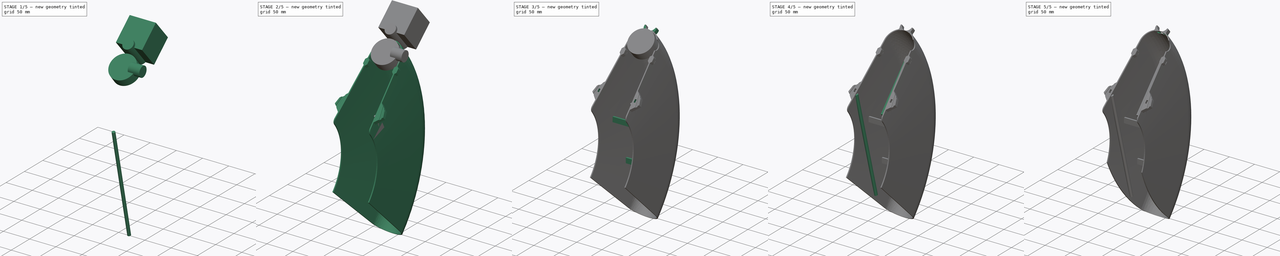
[diagram: build sequence overview — one tinted view per stage of 5, left to right]
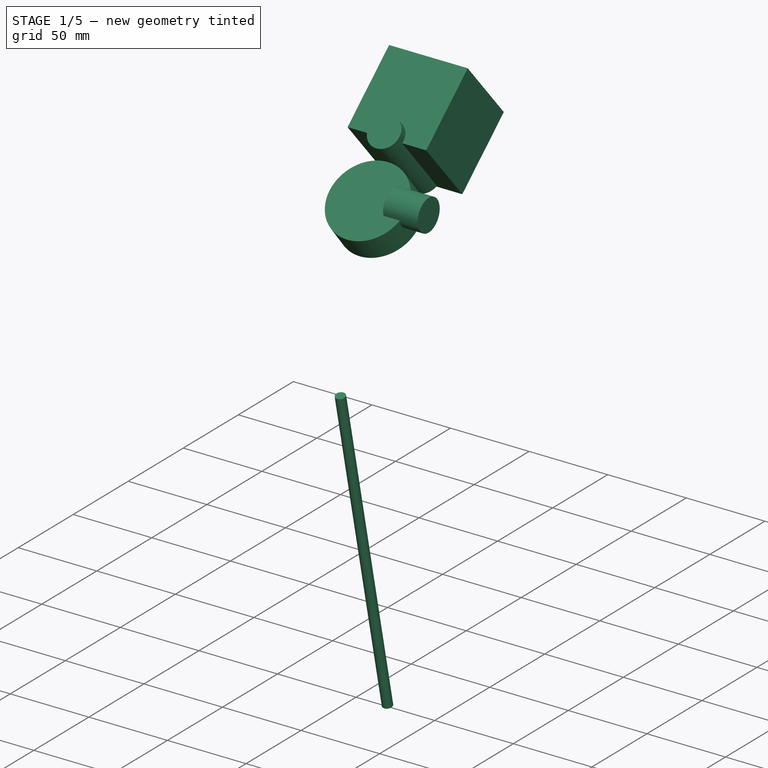
[diagram: stage 1 of 5 — iso view after this stage's code; geometry added in this stage tinted green]
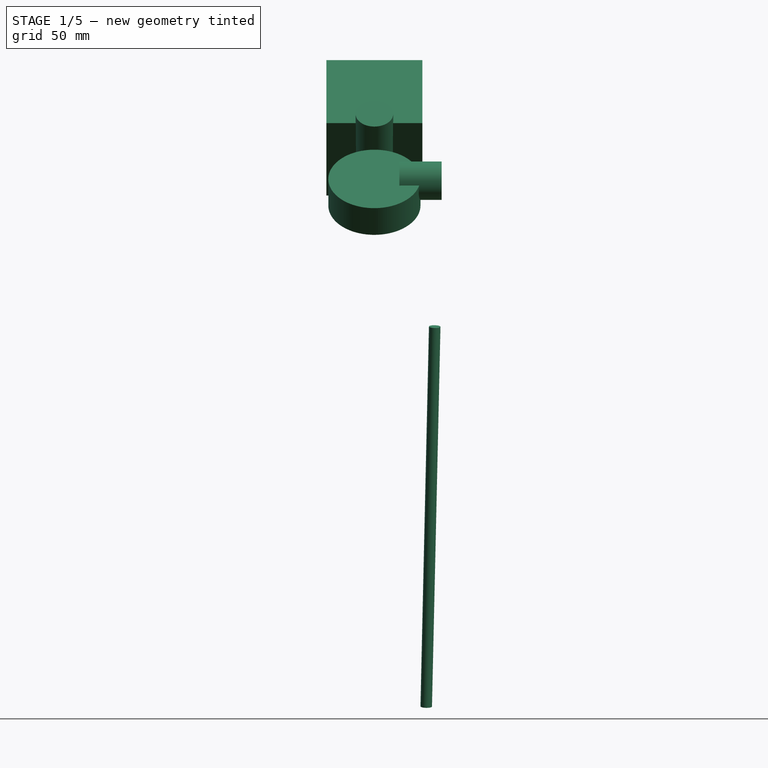
[diagram: stage 1 of 5 — front view after this stage's code; geometry added in this stage tinted green]
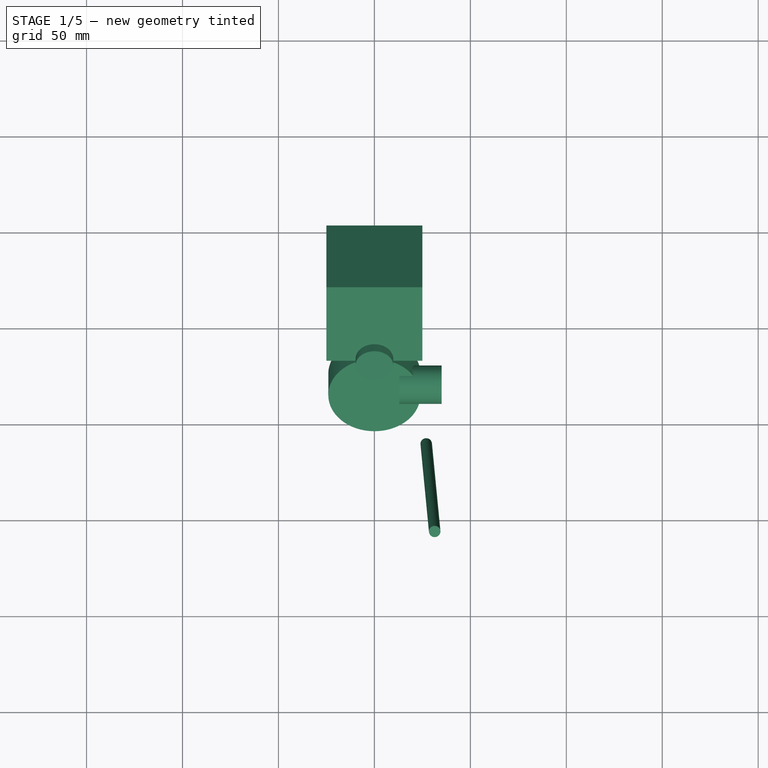
[diagram: stage 1 of 5 — top view after this stage's code; geometry added in this stage tinted green]
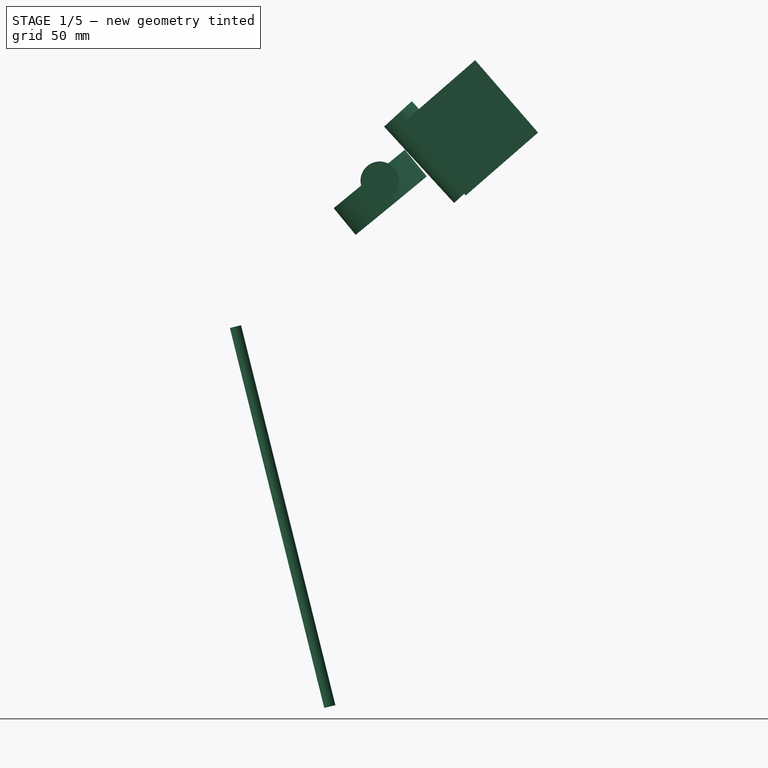
[diagram: stage 1 of 5 — right view after this stage's code; geometry added in this stage tinted green]
FCSTD DOCUMENT  (FreeCAD 0.19R)
Label: Mudguard9.1
License: All rights reserved
LicenseURL: http://en.wikipedia.org/wiki/All_rights_reserved
objects: Sketcher::SketchObject×6, Part::Cylinder×6, Part::Box×5, PartDesign::Pocket×4, Part::MultiFuse×4, Part::Fillet×4, Part::Cut×3, Part::Mirroring×2, PartDesign::Revolution×1, PartDesign::ShapeBinder×1, PartDesign::Fillet×1, PartDesign::Pad×1, PartDesign::Chamfer×1, PartDesign::Body×1, Part::MultiCommon×1
note: 49 computed .brp shape members not serialized (recipe doc carries the construction recipe); baked Part::Feature solids carry a one-line shape summary decoded from their .brp

FEATURE [Sketcher::SketchObject] Sketch002
  FullyConstrained = false
  MapMode = 5
  Placement = pos=(0,-9.6e-15,1.05e-14) rot=(1,0,0;0.741765rad)
  Support = -> [Fillet]
  sketch-geometry (21):
    g0: LineSegment StartX=-29.785 StartY=256.106 StartZ=0 EndX=29.785 EndY=256.106 EndZ=0
    g1: LineSegment StartX=-43.3942 StartY=132.698 StartZ=0 EndX=-46.5 EndY=121.106 EndZ=0
    g2: LineSegment StartX=-46.5 StartY=121.106 StartZ=0 EndX=-33.2488 EndY=107.855 EndZ=0
    g3: LineSegment StartX=-33.2488 StartY=107.855 StartZ=0 EndX=-31 EndY=145.092 EndZ=0
    g4: LineSegment StartX=-31 StartY=145.092 StartZ=0 EndX=-43.3942 EndY=132.698 EndZ=0
    g5: LineSegment StartX=43.3942 StartY=132.698 StartZ=0 EndX=46.5 EndY=121.106 EndZ=0
    g6: LineSegment StartX=46.5 StartY=121.106 StartZ=0 EndX=33.2488 EndY=107.855 EndZ=0
    g7: LineSegment StartX=33.2488 StartY=107.855 StartZ=0 EndX=31 EndY=145.092 EndZ=0
    g8: LineSegment StartX=31 StartY=145.092 StartZ=0 EndX=43.3942 EndY=132.698 EndZ=0
    g9: LineSegment StartX=28 StartY=194.106 StartZ=0 EndX=32 EndY=198.106 EndZ=0
    g10: LineSegment StartX=32 StartY=198.106 StartZ=0 EndX=32 EndY=206.106 EndZ=0
    g11: LineSegment StartX=32 StartY=206.106 StartZ=0 EndX=28 EndY=210.106 EndZ=0
    g12: LineSegment StartX=28 StartY=210.106 StartZ=0 EndX=24 EndY=206.106 EndZ=0
    g13: LineSegment StartX=24 StartY=206.106 StartZ=0 EndX=24 EndY=198.106 EndZ=0
    g14: LineSegment StartX=24 StartY=198.106 StartZ=0 EndX=28 EndY=194.106 EndZ=0
    g15: LineSegment StartX=-28 StartY=194.106 StartZ=0 EndX=-24 EndY=198.106 EndZ=0
    g16: LineSegment StartX=-24 StartY=198.106 StartZ=0 EndX=-24 EndY=206.106 EndZ=0
    g17: LineSegment StartX=-24 StartY=206.106 StartZ=0 EndX=-28 EndY=210.106 EndZ=0
    g18: LineSegment StartX=-28 StartY=210.106 StartZ=0 EndX=-32 EndY=206.106 EndZ=0
    g19: LineSegment StartX=-32 StartY=206.106 StartZ=0 EndX=-32 EndY=198.106 EndZ=0
    g20: LineSegment StartX=-32 StartY=198.106 StartZ=0 EndX=-28 EndY=194.106 EndZ=0
  constraints (55):
    c: Coincident(g1,g2)
    c: Coincident(g2,g3)
    c: Coincident(g3,g4)
    c: Coincident(g4,g1)
    c: Coincident(g5,g6)
    c: Coincident(g6,g7)
    c: Coincident(g7,g8)
    c: Coincident(g8,g5)
    c: Symmetric(g7,g3,g-2)
    c: Symmetric(g6,g2,g-2)
    c: Equal(g5,g1)
    c: Symmetric(g5,g1,g-2)
    c: Equal(g2,g6)
    c: Distance(g5,g1) = 93
    c: Angle(g6) = -2.35619
    c: Coincident(g9,g10)
    c: Vertical(g10)
    c: Coincident(g10,g11)
    c: Coincident(g11,g12)
    c: Coincident(g12,g13)
    c: Vertical(g13)
    c: Coincident(g13,g14)
    c: Coincident(g14,g9)
    c: Coincident(g15,g16)
    c: Coincident(g16,g17)
    c: Coincident(g17,g18)
    c: Coincident(g18,g19)
    c: Coincident(g19,g20)
    c: Coincident(g20,g15)
    c: Distance(g5) = 12
    c: Angle(g5) = -1.309
    c: Symmetric(g0,g0,g-2)
    c: Distance(g0) = 59.57
    c: Angle(g8) = -0.785398
    c: Distance(g7,g3) = 62
    c: Distance(g9,g13) = 8
    c: Symmetric(g13,g15,g-2)
    c: Symmetric(g12,g16,g-2)
    c: Symmetric(g9,g19,g-2)
    c: Symmetric(g10,g18,g-2)
    c: Equal(g13,g19)
    c: Distance(g10) = 8
    c: Angle(g12,g11) = 1.5708
    c: Equal(g18,g12)
    c: Equal(g20,g14)
    c: Equal(g15,g9)
    c: Equal(g17,g11)
    c: Angle(g15,g20) = 1.5708
    c: Equal(g20,g15)
    c: Distance(g10,g0) = 50
    c: DistanceY(g12,g10) = 0
    c: Distance(g9,g19) = 64
    c: Distance(g5,g0) = 135
    c: Distance(g2) = 18.74
    c: Equal(g17,g18)
FEATURE [Part::Cylinder] Cylinder
  Angle = 360
  AttacherType = Attacher::AttachEngine3D
  Height = 22
  Placement = pos=(35,166,156) rot=(0,-1,0;1.5708rad)
  Radius = 10
FEATURE [Part::Box] Box  label="Cube"
  AttacherType = Attacher::AttachEngine3D
  Height = 50
  Length = 50
  Placement = pos=(-25,178,186) rot=(-1,0,0;0.855211rad)
  Width = 50
FEATURE [Part::Cylinder] Cylinder006
  Angle = 360
  AttacherType = Attacher::AttachEngine3D
  Height = 54
  Placement = pos=(0,212,151) rot=(1,0,0;0.741765rad)
  Radius = 9.8
FEATURE [Part::MultiFuse] Fusion001
  Shapes = -> [Cylinder,Box,Cylinder006]
FEATURE [Part::Cylinder] Cylinder008
  Angle = 360
  AttacherType = Attacher::AttachEngine3D
  Height = 204
  Placement = pos=(-27,140,-118) rot=(0.995974,-0.089638,0;0.244346rad)
  Radius = 3
FEATURE [Part::Mirroring] Part__Mirroring  label="Cylinder008 (Mirror #1)"
  Base = (0,0,0)
  Normal = (1,0,0)
  Source = -> Cylinder008
FEATURE [Part::Cylinder] Cylinder009
  Angle = 360
  AttacherType = Attacher::AttachEngine3D
  Height = 18
  Placement = pos=(0,172,143) rot=(0.358791,0.313942,-0.879039;1.5708rad)
  Radius = 24
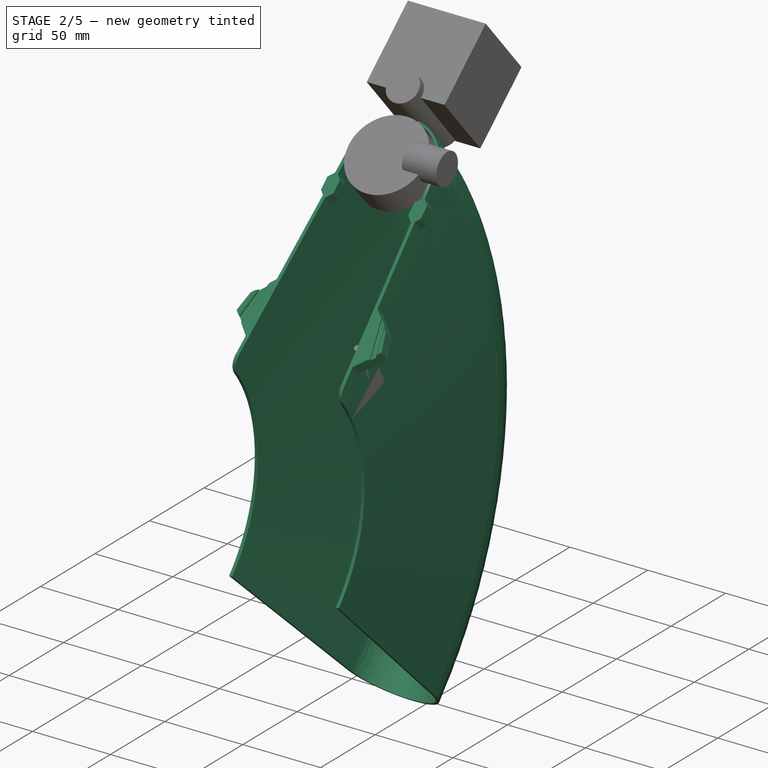
[diagram: stage 2 of 5 — iso view after this stage's code; geometry added in this stage tinted green]
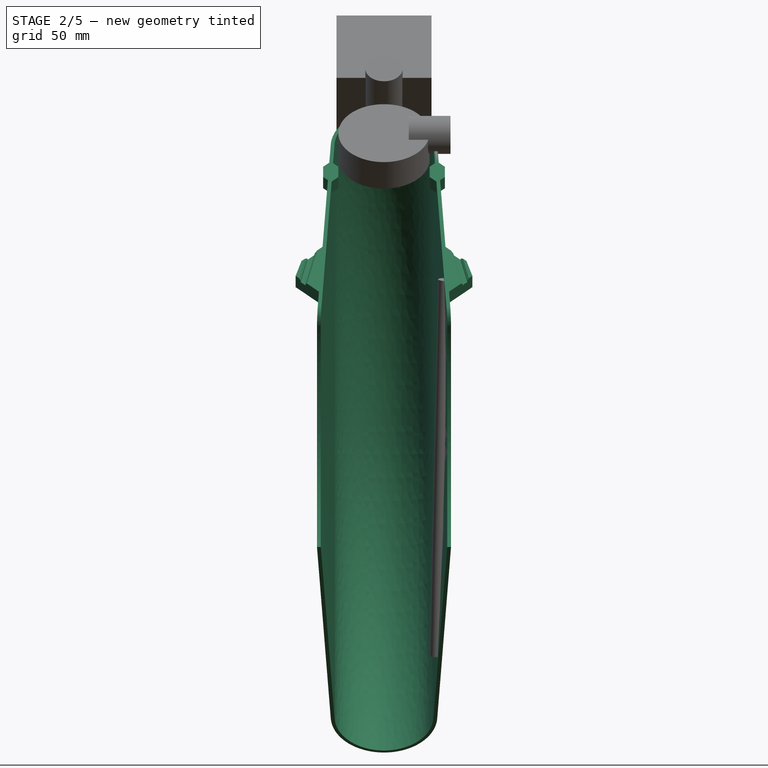
[diagram: stage 2 of 5 — front view after this stage's code; geometry added in this stage tinted green]
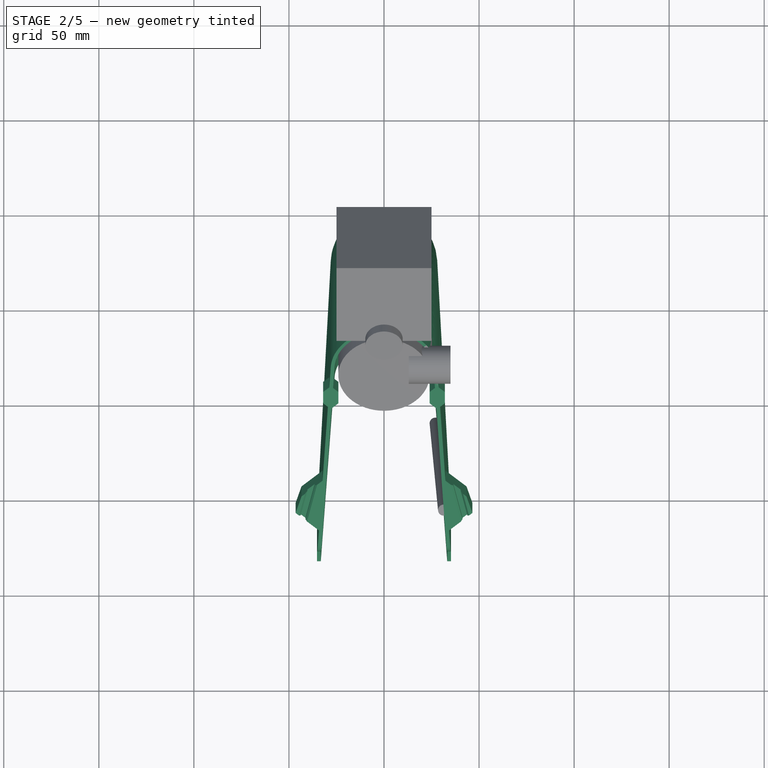
[diagram: stage 2 of 5 — top view after this stage's code; geometry added in this stage tinted green]
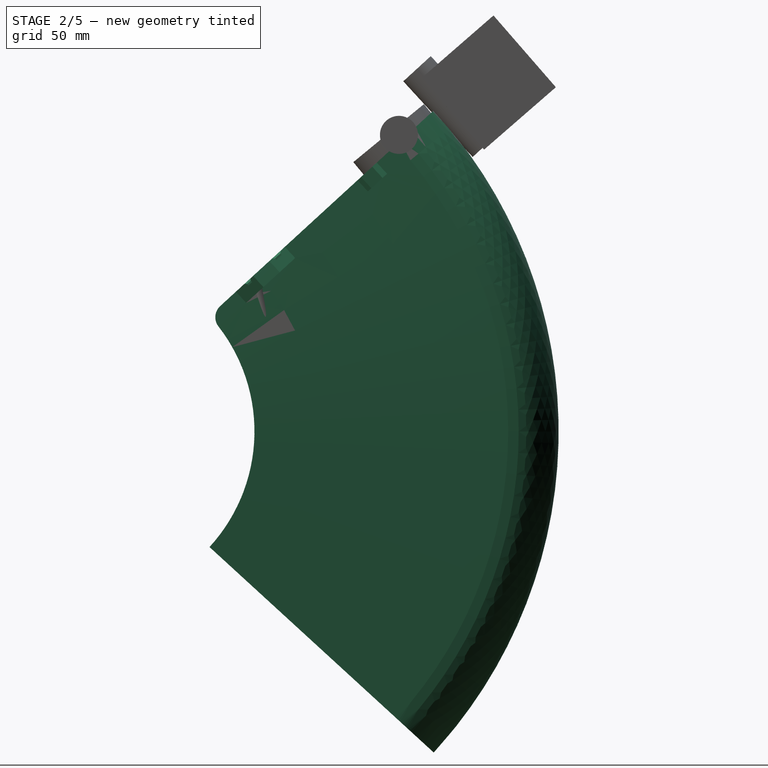
[diagram: stage 2 of 5 — right view after this stage's code; geometry added in this stage tinted green]
FEATURE [Sketcher::SketchObject] Sketch
  FullyConstrained = false
  MapMode = 5
  Support = -> [XY_Plane]
  sketch-geometry (9):
    g0: LineSegment StartX=-38.02 StartY=250 StartZ=0 EndX=36.46 EndY=250 EndZ=0
    g1: ArcOfCircle CenterX=4e-16 CenterY=221.959 CenterZ=0 NormalX=0 NormalY=0 NormalZ=1 AngleXU=0 Radius=28.0413 StartAngle=0.0542621 EndAngle=3.08733
    g2: LineSegment StartX=-35.25 StartY=90 StartZ=0 EndX=-28 EndY=223.48 EndZ=0
    g3: LineSegment StartX=-33.25 StartY=90 StartZ=0 EndX=-26.0014 EndY=223.4 EndZ=0
    g4: LineSegment StartX=26.0014 StartY=223.4 StartZ=0 EndX=33.25 EndY=90 EndZ=0
    g5: LineSegment StartX=-35.25 StartY=90 StartZ=0 EndX=-33.25 EndY=90 EndZ=0
    g6: LineSegment StartX=33.25 StartY=90 StartZ=0 EndX=35.25 EndY=90 EndZ=0
    g7: LineSegment StartX=35.25 StartY=90 StartZ=0 EndX=28 EndY=223.48 EndZ=0
    g8: ArcOfCircle CenterX=3e-16 CenterY=222.39 CenterZ=0 NormalX=0 NormalY=0 NormalZ=1 AngleXU=0 Radius=26.021 StartAngle=0.0388177 EndAngle=3.10277
  constraints (24):
    c: Horizontal(g0)
    c: DistanceY(g0) = 250
    c: Tangent(g1,g0)
    c: Symmetric(g1,g1,g-2)
    c: Distance(g0) = 74.48
    c: DistanceX(g0) = 36.46
    c: Tangent(g2,g1) = 1.5708
    c: Coincident(g5,g2)
    c: Coincident(g5,g3)
    c: Distance(g5) = 2
    c: Coincident(g4,g6)
    c: Coincident(g6,g7)
    c: Coincident(g7,g1)
    c: Symmetric(g4,g3,g-2)
    c: Symmetric(g6,g2,g-2)
    c: Horizontal(g6)
    c: Distance(g4,g3) = 66.5
    c: DistanceY(g6) = 90
    c: Distance(g1,g1) = 56
    c: Coincident(g8,g4)
    c: Coincident(g8,g3)
    c: Symmetric(g3,g4,g-2)
    c: Distance(g4,g7) = 2
    c: DistanceY(g4) = 223.4
FEATURE [PartDesign::Revolution] Revolution
  Angle = 85
  Axis = (1,0,0)
  Base = (0,0,0)
  Midplane = true
  Profile = -> Sketch
  ReferenceAxis = -> Sketch [H_Axis]
FEATURE [PartDesign::ShapeBinder] CopyFusion
  Placement = pos=(0,0,0) rot=(1,0,0;0.785398rad)
  TraceSupport = false
FEATURE [PartDesign::Fillet] Fillet
  Base = -> Revolution [Edge7,Edge19]
  BaseFeature = -> Revolution
  Radius = 8
  SupportTransform = false
FEATURE [PartDesign::Pad] Pad
  BaseFeature = -> Fillet
  Direction = (1,1,1)
  Length = 8
  Length2 = 100
  Profile = -> Sketch002
  Reversed = true
  Type = 0
FEATURE [Sketcher::SketchObject] Sketch003
  FullyConstrained = true
  MapMode = 5
  Placement = pos=(0,4.8e-15,-5.2e-15) rot=(1,0,0;0.741765rad)
  Support = -> [Pad]
  sketch-geometry (8):
    g0: LineSegment StartX=35 StartY=146.87 StartZ=0 EndX=45 EndY=97.88 EndZ=0
    g1: LineSegment StartX=45 StartY=97.88 StartZ=0 EndX=47.9394 EndY=98.48 EndZ=0
    g2: LineSegment StartX=47.9394 StartY=98.48 StartZ=0 EndX=37.9394 EndY=147.47 EndZ=0
    g3: LineSegment StartX=37.9394 StartY=147.47 StartZ=0 EndX=35 EndY=146.87 EndZ=0
    g4: LineSegment StartX=-47.9394 StartY=98.48 StartZ=0 EndX=-45 EndY=97.88 EndZ=0
    g5: LineSegment StartX=-45 StartY=97.88 StartZ=0 EndX=-35 EndY=146.87 EndZ=0
    g6: LineSegment StartX=-47.9394 StartY=98.48 StartZ=0 EndX=-37.9394 EndY=147.47 EndZ=0
    g7: LineSegment StartX=-37.9394 StartY=147.47 StartZ=0 EndX=-35 EndY=146.87 EndZ=0
  constraints (22):
    c: Coincident(g0,g1)
    c: Coincident(g1,g2)
    c: Coincident(g2,g3)
    c: Coincident(g3,g0)
    c: Coincident(g4,g5)
    c: Equal(g1,g3)
    c: Equal(g0,g2)
    c: Symmetric(g4,g0,g-2)
    c: Perpendicular(g0,g1)
    c: Distance(g3) = 3
    c: Distance(g0,g4) = 90
    c: Coincident(g4,g6)
    c: Coincident(g6,g7)
    c: Coincident(g7,g5)
    c: Equal(g7,g3)
    c: Equal(g6,g5)
    c: Perpendicular(g6,g7)
    c: Symmetric(g0,g5,g-2)
    c: Distance(g2) = 50
    c: Equal(g4,g7)
    c: DistanceY(g0) = 97.88
    c: Distance(g5,g0) = 70
FEATURE [PartDesign::Pocket] Pocket
  BaseFeature = -> Pad
  Length = 2
  Length2 = 100
  Profile = -> Sketch003
  Type = 0
FEATURE [PartDesign::Chamfer] Chamfer
  Angle = 45
  Base = -> Pocket [Edge139,Edge101,Edge142,Edge145]
  BaseFeature = -> Pocket
  ChamferType = 0
  FlipDirection = false
  Size = 1
  Size2 = 1
  SupportTransform = false
FEATURE [Sketcher::SketchObject] Sketch005
  FullyConstrained = false
  MapMode = 5
  Placement = pos=(1.4e-15,5.40472,-5.89822) rot=(1,0,0;3.88336rad)
  Support = -> [Chamfer]
  sketch-geometry (8):
    g0: LineSegment StartX=-37.5477 StartY=128.579 StartZ=0 EndX=-34.5477 EndY=128.579 EndZ=0
    g1: LineSegment StartX=-34.5477 StartY=128.579 StartZ=0 EndX=-34.5477 EndY=121.579 EndZ=0
    g2: LineSegment StartX=-34.5477 StartY=121.579 StartZ=0 EndX=-37.5477 EndY=121.579 EndZ=0
    g3: LineSegment StartX=-37.5477 StartY=121.579 StartZ=0 EndX=-37.5477 EndY=128.579 EndZ=0
    g4: LineSegment StartX=34.5477 StartY=128.579 StartZ=0 EndX=37.5477 EndY=128.579 EndZ=0
    g5: LineSegment StartX=37.5477 StartY=128.579 StartZ=0 EndX=37.5477 EndY=121.579 EndZ=0
    g6: LineSegment StartX=37.5477 StartY=121.579 StartZ=0 EndX=34.5477 EndY=121.579 EndZ=0
    g7: LineSegment StartX=34.5477 StartY=121.579 StartZ=0 EndX=34.5477 EndY=128.579 EndZ=0
  constraints (21):
    c: Coincident(g0,g1)
    c: Coincident(g1,g2)
    c: Coincident(g2,g3)
    c: Coincident(g3,g0)
    c: Horizontal(g0)
    c: Horizontal(g2)
    c: Vertical(g1)
    c: Vertical(g3)
    c: Coincident(g4,g5)
    c: Coincident(g5,g6)
    c: Coincident(g6,g7)
    c: Coincident(g7,g4)
    c: Horizontal(g4)
    c: Horizontal(g6)
    c: Vertical(g5)
    c: Vertical(g7)
    c: Distance(g4) = 3
    c: Distance(g5) = 7
    c: Equal(g4,g0)
    c: Symmetric(g0,g4,g-2)
    c: Equal(g1,g5)
FEATURE [PartDesign::Pocket] Pocket001
  BaseFeature = -> Chamfer
  Length = 5
  Length2 = 100
  Profile = -> Sketch005
  Type = 1
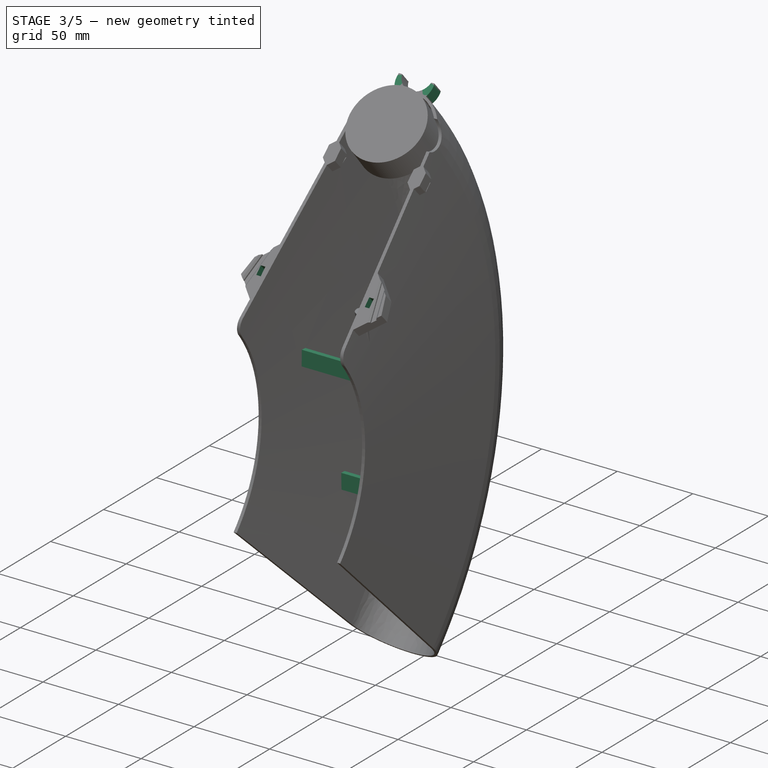
[diagram: stage 3 of 5 — iso view after this stage's code; geometry added in this stage tinted green]
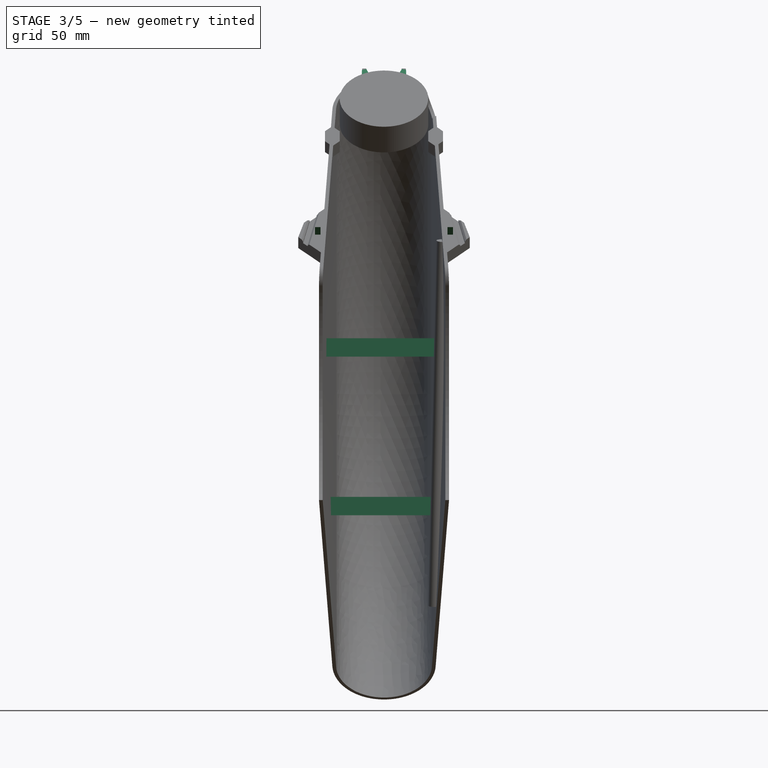
[diagram: stage 3 of 5 — front view after this stage's code; geometry added in this stage tinted green]
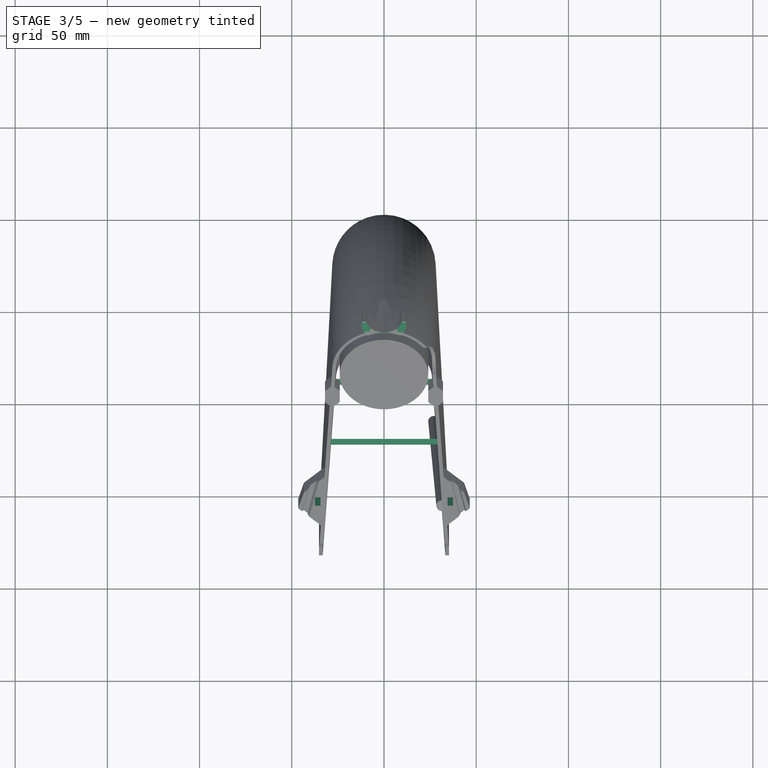
[diagram: stage 3 of 5 — top view after this stage's code; geometry added in this stage tinted green]
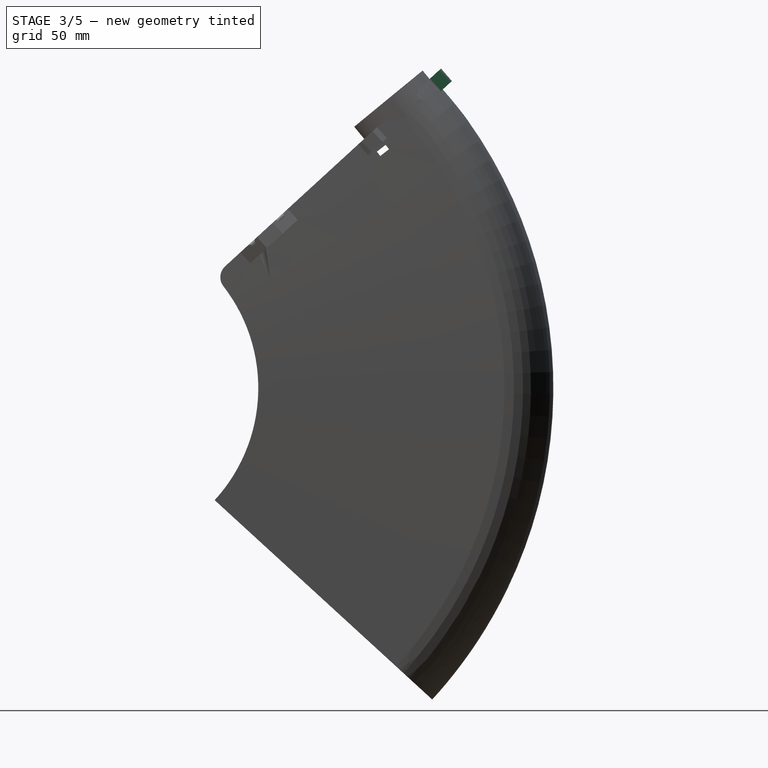
[diagram: stage 3 of 5 — right view after this stage's code; geometry added in this stage tinted green]
FEATURE [Sketcher::SketchObject] Sketch006
  FullyConstrained = false
  MapMode = 5
  Placement = pos=(32,0,0) rot=(0.57735,0.57735,0.57735;2.0944rad)
  sketch-geometry (4):
    g0: LineSegment StartX=154.311 StartY=128.181 StartZ=0 EndX=156.15 EndY=125.81 EndZ=0
    g1: LineSegment StartX=156.15 StartY=125.81 StartZ=0 EndX=160.891 EndY=129.486 EndZ=0
    g2: LineSegment StartX=160.891 StartY=129.486 StartZ=0 EndX=159.053 EndY=131.857 EndZ=0
    g3: LineSegment StartX=159.053 StartY=131.857 StartZ=0 EndX=154.311 EndY=128.181 EndZ=0
  constraints (9):
    c: Coincident(g0,g1)
    c: Coincident(g1,g2)
    c: Coincident(g2,g3)
    c: Coincident(g3,g0)
    c: Equal(g1,g3)
    c: Perpendicular(g1,g0)
    c: Equal(g2,g0)
    c: Distance(g2) = 3
    c: Distance(g3) = 6
FEATURE [PartDesign::Pocket] Pocket002
  BaseFeature = -> Pocket001
  Length = 5
  Length2 = 100
  Profile = -> Sketch006
  Type = 1
FEATURE [Part::Cylinder] Cylinder003
  Angle = 360
  AttacherType = Attacher::AttachEngine3D
  Height = 9
  Placement = pos=(0,193.4,165) rot=(1,0,0;0.741765rad)
  Radius = 12
FEATURE [Part::Box] Box003  label="Cube003"
  AttacherType = Attacher::AttachEngine3D
  Height = 10
  Length = 64
  Placement = pos=(-32,125,17) rot=(0,0,1;0rad)
  Width = 3
FEATURE [Part::Box] Box004  label="Cube004"
  AttacherType = Attacher::AttachEngine3D
  Height = 10
  Length = 60
  Placement = pos=(-30,159,-69) rot=(0,0,1;0rad)
  Width = 3
FEATURE [Sketcher::SketchObject] Sketch007
  FullyConstrained = false
  MapMode = 5
  Placement = pos=(1.4e-15,5.40472,-5.89822) rot=(1,0,0;3.88336rad)
  Support = -> [Pocket002]
  sketch-geometry (8):
    g0: LineSegment StartX=-37.3985 StartY=-123.117 StartZ=0 EndX=-34.3985 EndY=-123.117 EndZ=0
    g1: LineSegment StartX=-34.3985 StartY=-123.117 StartZ=0 EndX=-34.3985 EndY=-129.117 EndZ=0
    g2: LineSegment StartX=-34.3985 StartY=-129.117 StartZ=0 EndX=-37.3985 EndY=-129.117 EndZ=0
    g3: LineSegment StartX=-37.3985 StartY=-129.117 StartZ=0 EndX=-37.3985 EndY=-123.117 EndZ=0
    g4: LineSegment StartX=34.3985 StartY=-123.117 StartZ=0 EndX=37.3985 EndY=-123.117 EndZ=0
    g5: LineSegment StartX=37.3985 StartY=-123.117 StartZ=0 EndX=37.3985 EndY=-129.117 EndZ=0
    g6: LineSegment StartX=37.3985 StartY=-129.117 StartZ=0 EndX=34.3985 EndY=-129.117 EndZ=0
    g7: LineSegment StartX=34.3985 StartY=-129.117 StartZ=0 EndX=34.3985 EndY=-123.117 EndZ=0
  constraints (21):
    c: Coincident(g0,g1)
    c: Coincident(g1,g2)
    c: Coincident(g2,g3)
    c: Coincident(g3,g0)
    c: Horizontal(g0)
    c: Horizontal(g2)
    c: Vertical(g1)
    c: Vertical(g3)
    c: Coincident(g4,g5)
    c: Coincident(g5,g6)
    c: Coincident(g6,g7)
    c: Coincident(g7,g4)
    c: Horizontal(g4)
    c: Horizontal(g6)
    c: Vertical(g5)
    c: Vertical(g7)
    c: Distance(g0) = 3
    c: Distance(g4) = 3
    c: Distance(g5) = 6
    c: Distance(g1) = 6
    c: Symmetric(g1,g6,g-2)
FEATURE [PartDesign::Pocket] Pocket003
  BaseFeature = -> Pocket002
  Length = 5
  Length2 = 100
  Profile = -> Sketch007
  Type = 1
FEATURE [Part::MultiFuse] Fusion
  Shapes = -> [Cylinder003,Pocket003,Box004,Box003]
FEATURE [Part::Cut] Cut
  Base = -> Fusion
  Tool = -> Fusion001
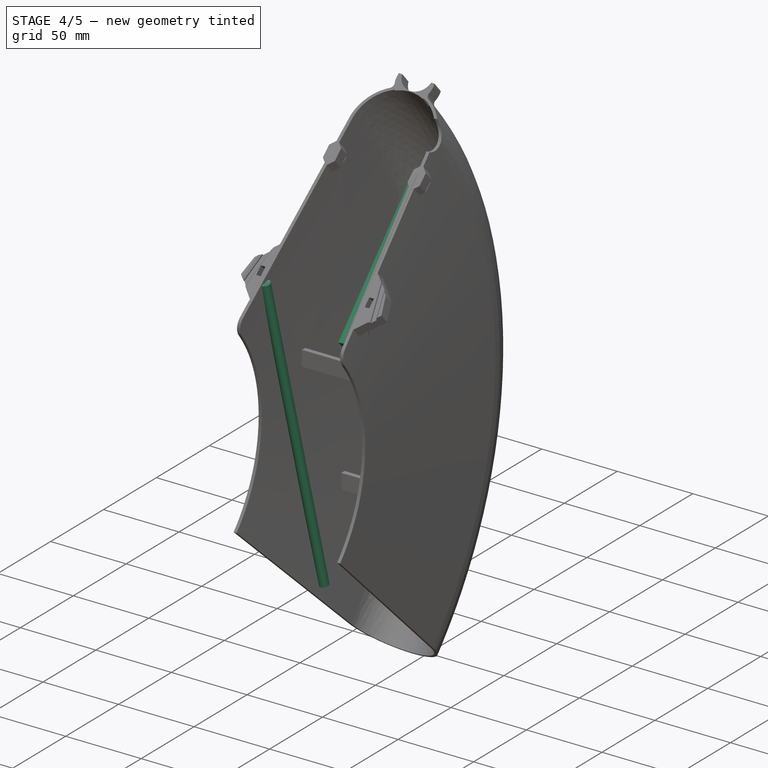
[diagram: stage 4 of 5 — iso view after this stage's code; geometry added in this stage tinted green]
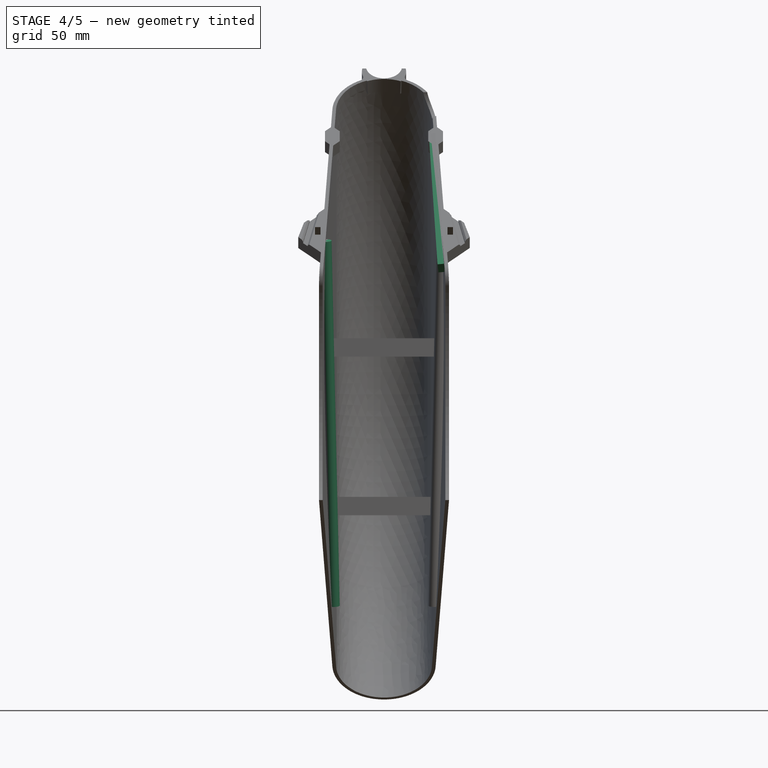
[diagram: stage 4 of 5 — front view after this stage's code; geometry added in this stage tinted green]
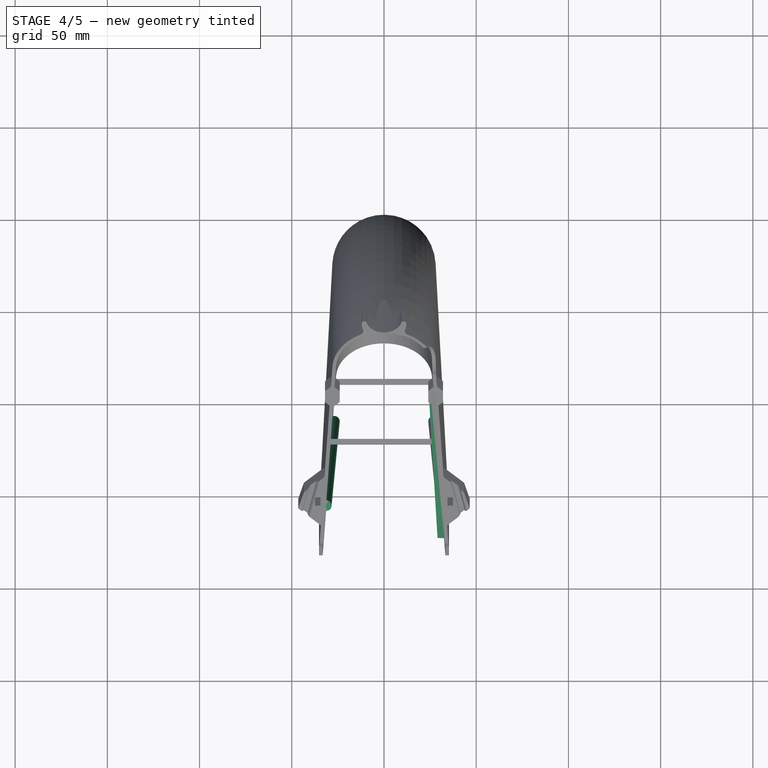
[diagram: stage 4 of 5 — top view after this stage's code; geometry added in this stage tinted green]
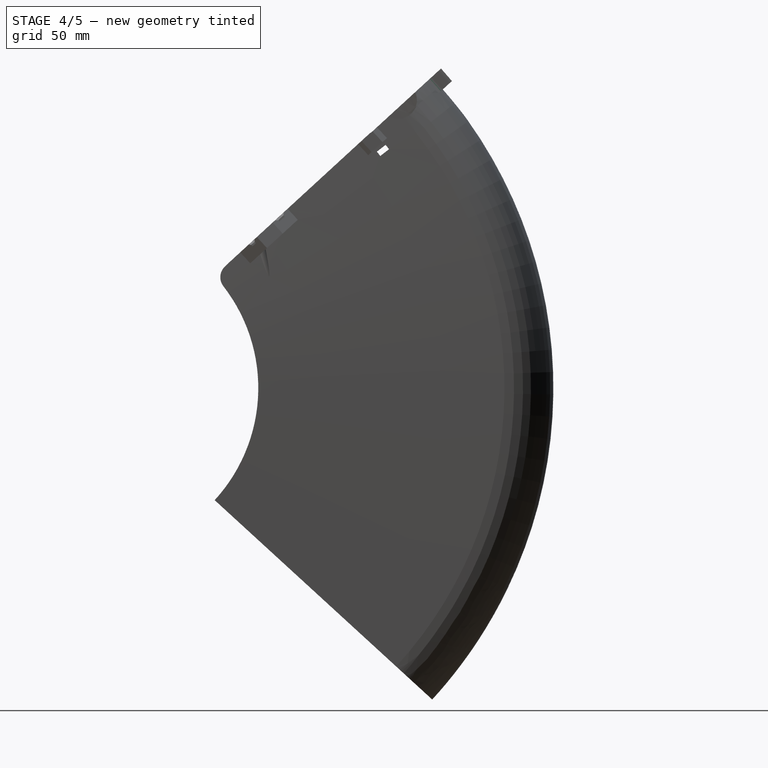
[diagram: stage 4 of 5 — right view after this stage's code; geometry added in this stage tinted green]
FEATURE [Part::MultiFuse] Fusion002
  Shapes = -> [Part__Mirroring,Cylinder008,Cut]
FEATURE [Part::Box] Box006  label="Cube006"
  AttacherType = Attacher::AttachEngine3D
  Height = 6
  Length = 3.5
  Placement = pos=(-33,77.5,63) rot=(0.991739,0.127146,-0.016953;0.750492rad)
  Width = 105
FEATURE [Part::Mirroring] Part__Mirroring001  label="Cube006 (Mirror #2)"
  Base = (0,0,0)
  Normal = (1,0,0)
  Source = -> Box006
FEATURE [Part::Cut] Cut001
  Base = -> Fusion002
  Tool = -> Cylinder009
FEATURE [Part::MultiFuse] Fusion003
  Shapes = -> [Cut001,Part__Mirroring001]
FEATURE [Part::Fillet] Fillet001
  Base = -> Fusion003
  Edges = 2 edges r=3: [Edge143,Edge147]
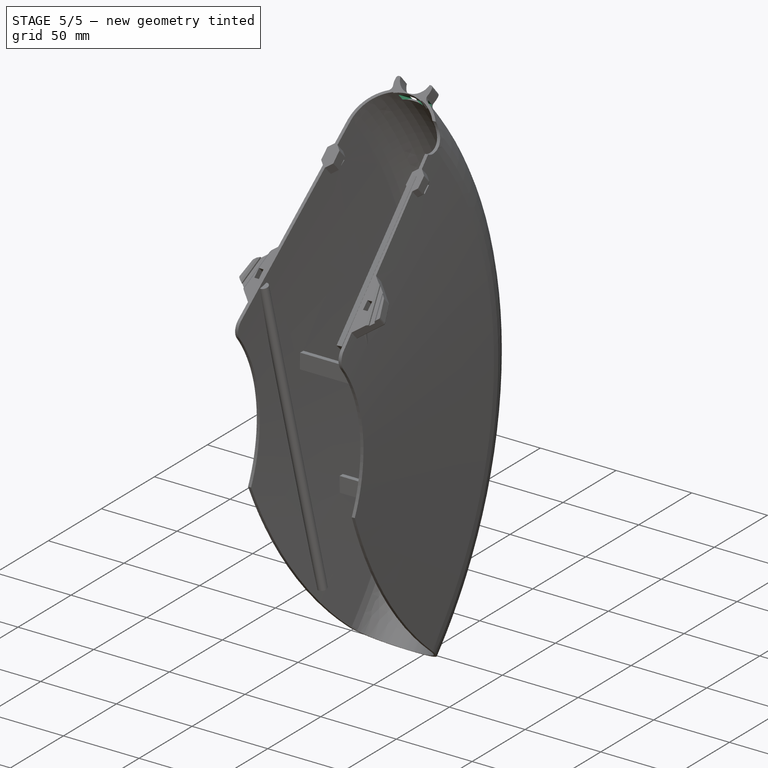
[diagram: stage 5 of 5 — iso view after this stage's code; geometry added in this stage tinted green]
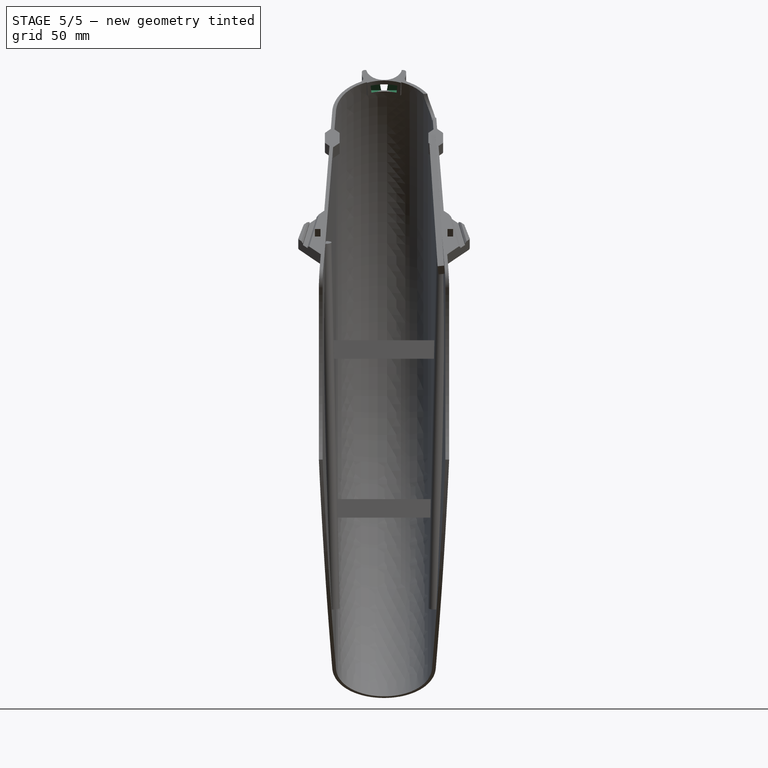
[diagram: stage 5 of 5 — front view after this stage's code; geometry added in this stage tinted green]
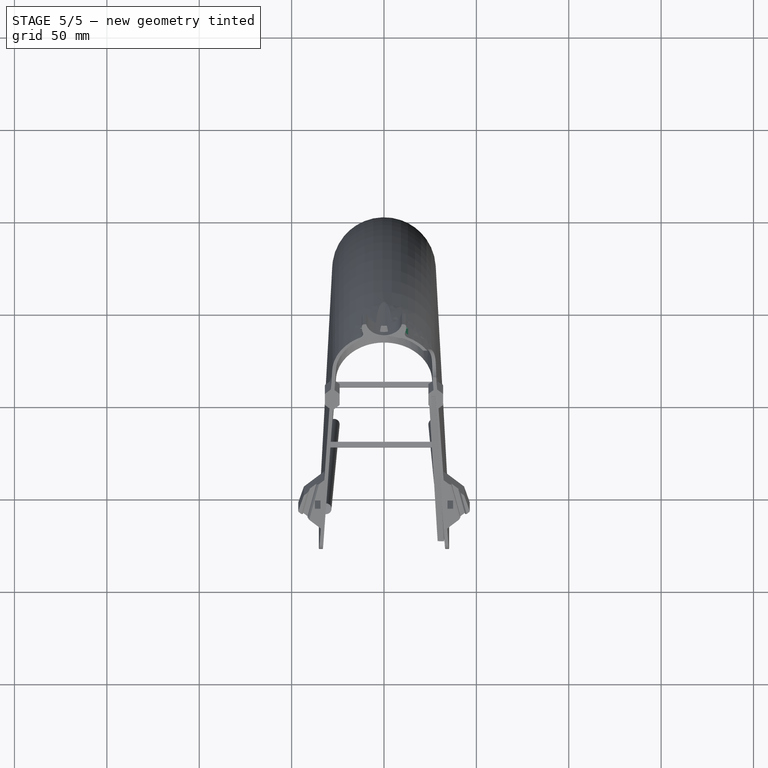
[diagram: stage 5 of 5 — top view after this stage's code; geometry added in this stage tinted green]
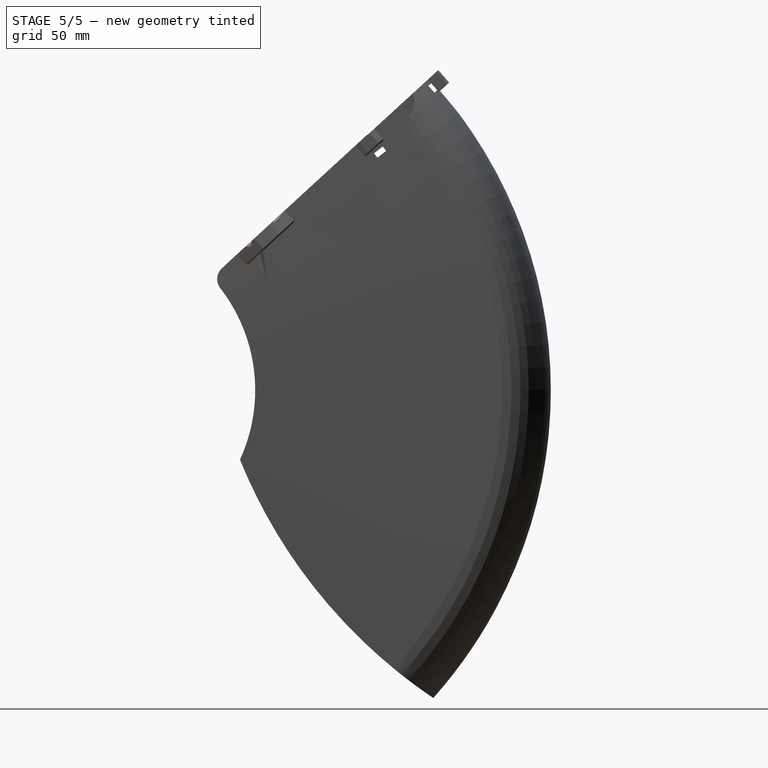
[diagram: stage 5 of 5 — right view after this stage's code; geometry added in this stage tinted green]
FEATURE [PartDesign::Body] Body
  Group = -> [Sketch,Revolution,CopyFusion,Fillet,Sketch002,Sketch003,Pad,Pocket,Chamfer,Sketch005,Pocket001,Sketch006,Pocket002,Sketch007,Pocket003]
  Origin = -> Origin
  Tip = -> Pocket003
FEATURE [Part::Cylinder] Cylinder007
  Angle = 360
  AttacherType = Attacher::AttachEngine3D
  Height = 196
  Placement = pos=(74,345,69) rot=(0,-1,0;1.5708rad)
  Radius = 284
FEATURE [Part::Box] Box005  label="Cube005"
  AttacherType = Attacher::AttachEngine3D
  Height = 5
  Length = 50
  Placement = pos=(-25,187,161) rot=(1,0,0;0.715585rad)
  Width = 2
FEATURE [Part::Fillet] Fillet002
  Base = -> Fillet001
  Edges = 10 edges r=1: [Edge142,Edge143,Edge150,Edge151,Edge158,Edge213,Edge214,Edge221,Edge222,Edge229]
FEATURE [Part::Fillet] Fillet003
  Base = -> Fillet002
  Edges = 10 edges r=1: [Edge91,Edge92,Edge94,Edge95,Edge96,Edge318,Edge319,Edge321,Edge322,Edge323]
FEATURE [Part::Fillet] Fillet004
  Base = -> Fillet003
  Edges = 2 edges r=1.5: [Edge278,Edge279]
FEATURE [Part::MultiCommon] Common
  Shapes = -> [Fillet004,Cylinder007]
FEATURE [Part::Cut] Cut002
  Base = -> Common
  Tool = -> Box005
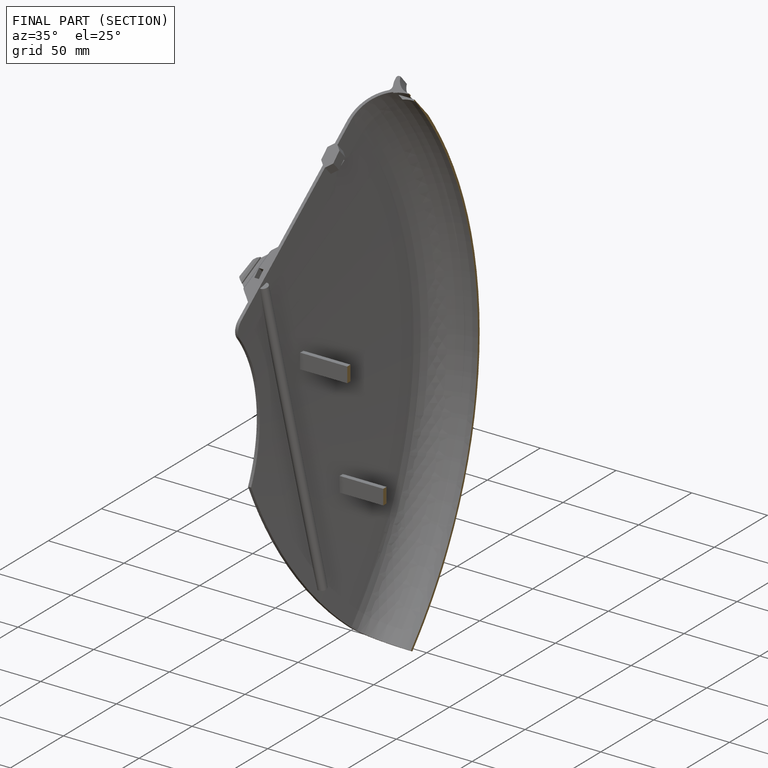
[diagram: finished part — half-section view (interior)]
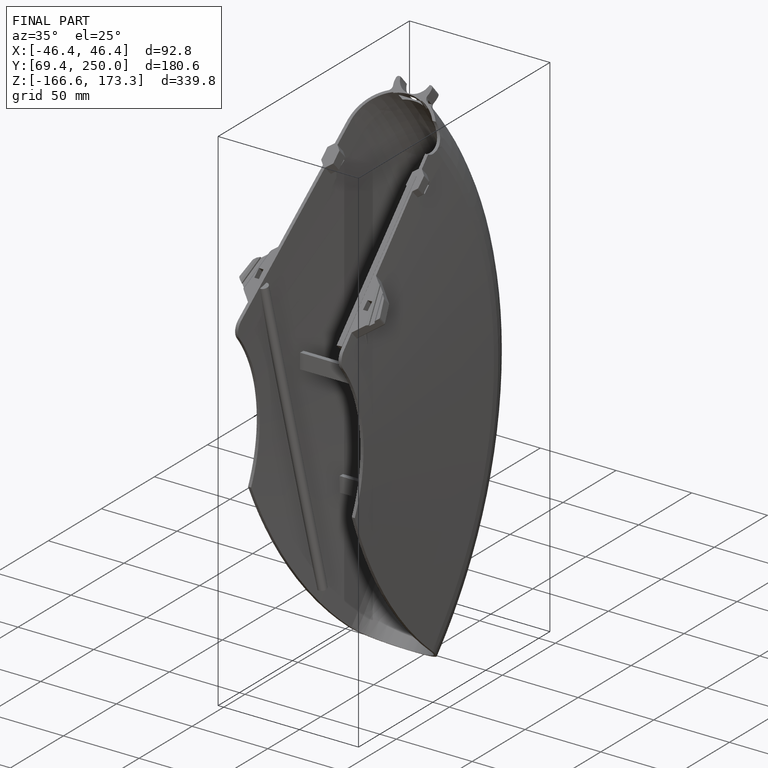
[diagram: finished part — iso view with bounding-box wireframe]
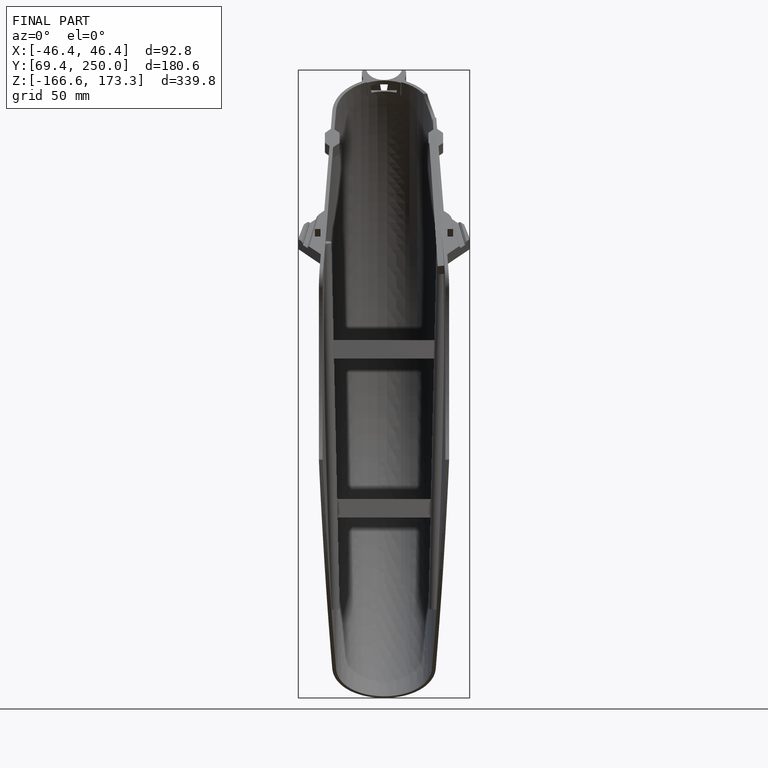
[diagram: finished part — front view with bounding-box wireframe]
